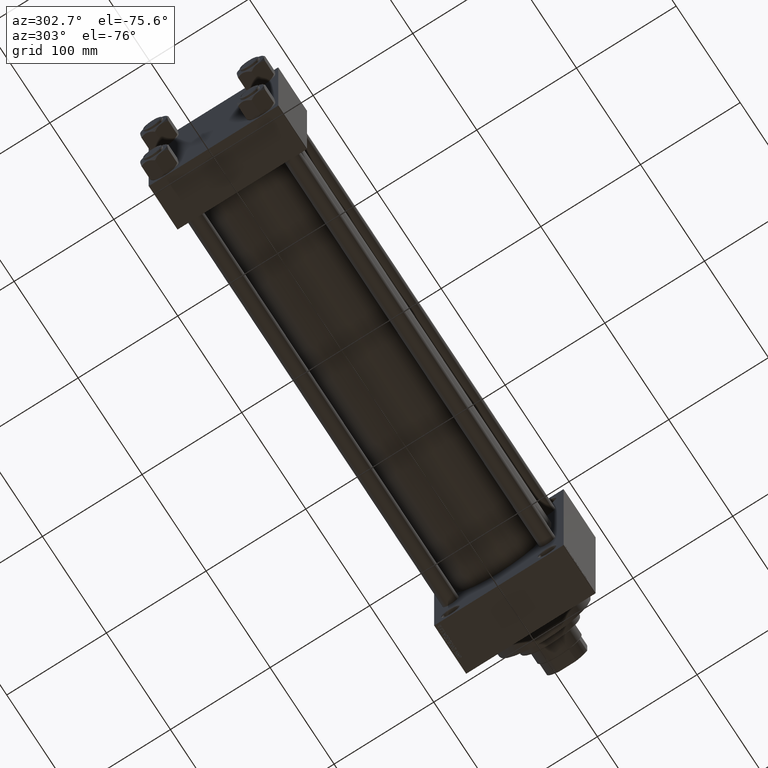
[diagram: clean part render]
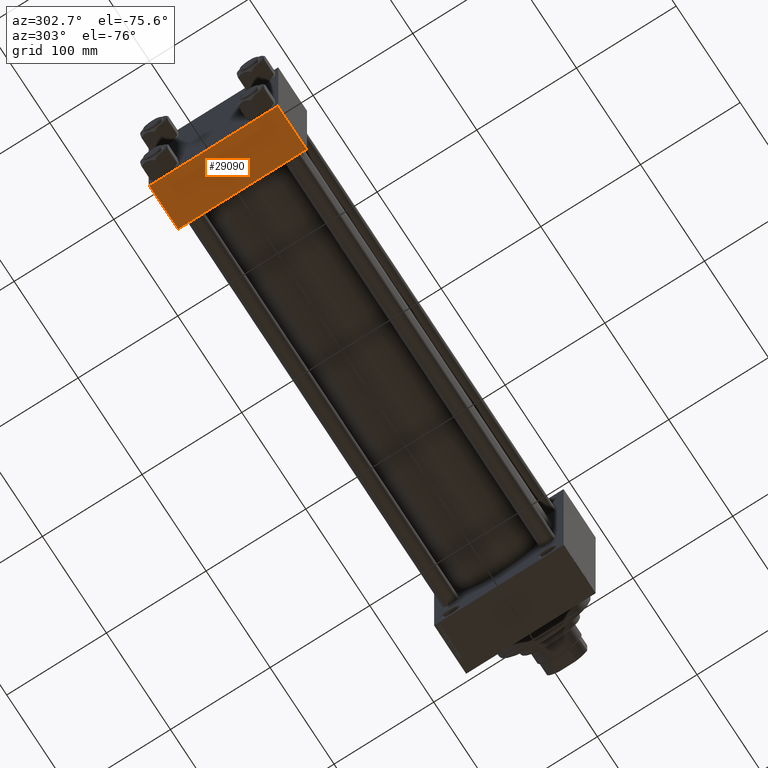
[diagram: same view with one face highlighted and labeled with its STEP entity id]
A machine part, auxiliary view. The second image highlights one B-rep face of the part: STEP entity #29090.
In plain terms, the highlighted planar face has unit normal (0, 0, -1).
Its self-contained STEP definition (entity closure, byte-faithful):
#390 = VERTEX_POINT ( 'NONE', #3452 ) ;
#637 = EDGE_CURVE ( 'NONE', #34777, #47490, #22133, .T. ) ;
#1205 = AXIS2_PLACEMENT_3D ( 'NONE', #43887, #10852, #47007 ) ;
#1270 = DIRECTION ( 'NONE',  ( -1.000000000000000000, 0.000000000000000000, 0.000000000000000000 ) ) ;
#2165 = VERTEX_POINT ( 'NONE', #9376 ) ;
#3452 = CARTESIAN_POINT ( 'NONE',  ( 0.000000000000000000, 64.49999999999997158, -64.99999999999998579 ) ) ;
#3797 = LINE ( 'NONE', #14886, #9723 ) ;
#3884 = CARTESIAN_POINT ( 'NONE',  ( 45.00000000000000000, -64.49999999999994316, -65.00000000000001421 ) ) ;
#4188 = CARTESIAN_POINT ( 'NONE',  ( 0.000000000000000000, -64.49999999999994316, -65.00000000000001421 ) ) ;
#4714 = ORIENTED_EDGE ( 'NONE', *, *, #16842, .T. ) ;
#6953 = CARTESIAN_POINT ( 'NONE',  ( 45.00000000000000000, 64.49999999999997158, -64.99999999999998579 ) ) ;
#8130 = DIRECTION ( 'NONE',  ( 0.000000000000000000, -1.000000000000000000, -2.135044278125300850E-16 ) ) ;
#9376 = CARTESIAN_POINT ( 'NONE',  ( 0.000000000000000000, -64.49999999999994316, -65.00000000000001421 ) ) ;
#9723 = VECTOR ( 'NONE', #8130, 1000.000000000000000 ) ;
#10852 = DIRECTION ( 'NONE',  ( 0.000000000000000000, 2.135044278125301096E-16, -1.000000000000000000 ) ) ;
#11061 = DIRECTION ( 'NONE',  ( 0.000000000000000000, -1.000000000000000000, -2.135044278125300850E-16 ) ) ;
#14162 = ORIENTED_EDGE ( 'NONE', *, *, #29479, .F. ) ;
#14886 = CARTESIAN_POINT ( 'NONE',  ( 0.000000000000000000, 65.00000000000000000, -64.99999999999998579 ) ) ;
#15261 = LINE ( 'NONE', #29011, #17636 ) ;
#16842 = EDGE_CURVE ( 'NONE', #47490, #2165, #37207, .T. ) ;
#17636 = VECTOR ( 'NONE', #43970, 1000.000000000000000 ) ;
#21093 = ORIENTED_EDGE ( 'NONE', *, *, #637, .T. ) ;
#22133 = LINE ( 'NONE', #37558, #30961 ) ;
#25247 = ORIENTED_EDGE ( 'NONE', *, *, #47121, .T. ) ;
#28206 = FACE_OUTER_BOUND ( 'NONE', #46048, .T. ) ;
#29011 = CARTESIAN_POINT ( 'NONE',  ( 45.00000000000000000, 64.49999999999997158, -64.99999999999998579 ) ) ;
#29090 = ADVANCED_FACE ( 'NONE', ( #28206 ), #29164, .T. ) ;
#29164 = PLANE ( 'NONE',  #1205 ) ;
#29479 = EDGE_CURVE ( 'NONE', #390, #2165, #3797, .T. ) ;
#30961 = VECTOR ( 'NONE', #11061, 1000.000000000000000 ) ;
#33265 = VECTOR ( 'NONE', #1270, 1000.000000000000000 ) ;
#34777 = VERTEX_POINT ( 'NONE', #6953 ) ;
#37207 = LINE ( 'NONE', #4188, #33265 ) ;
#37558 = CARTESIAN_POINT ( 'NONE',  ( 45.00000000000000000, 65.00000000000000000, -64.99999999999998579 ) ) ;
#43887 = CARTESIAN_POINT ( 'NONE',  ( 45.00000000000000000, 65.00000000000000000, -64.99999999999998579 ) ) ;
#43970 = DIRECTION ( 'NONE',  ( 1.000000000000000000, 0.000000000000000000, 0.000000000000000000 ) ) ;
#46048 = EDGE_LOOP ( 'NONE', ( #14162, #25247, #21093, #4714 ) ) ;
#47007 = DIRECTION ( 'NONE',  ( 0.000000000000000000, 1.000000000000000000, 2.135044278125301096E-16 ) ) ;
#47121 = EDGE_CURVE ( 'NONE', #390, #34777, #15261, .T. ) ;
#47490 = VERTEX_POINT ( 'NONE', #3884 ) ;